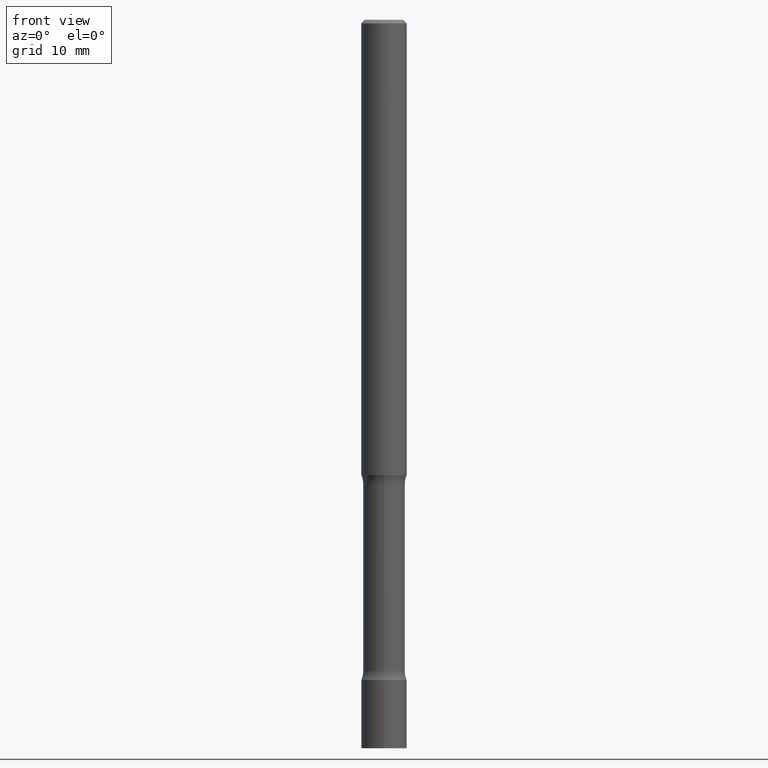
[diagram: clean part render]
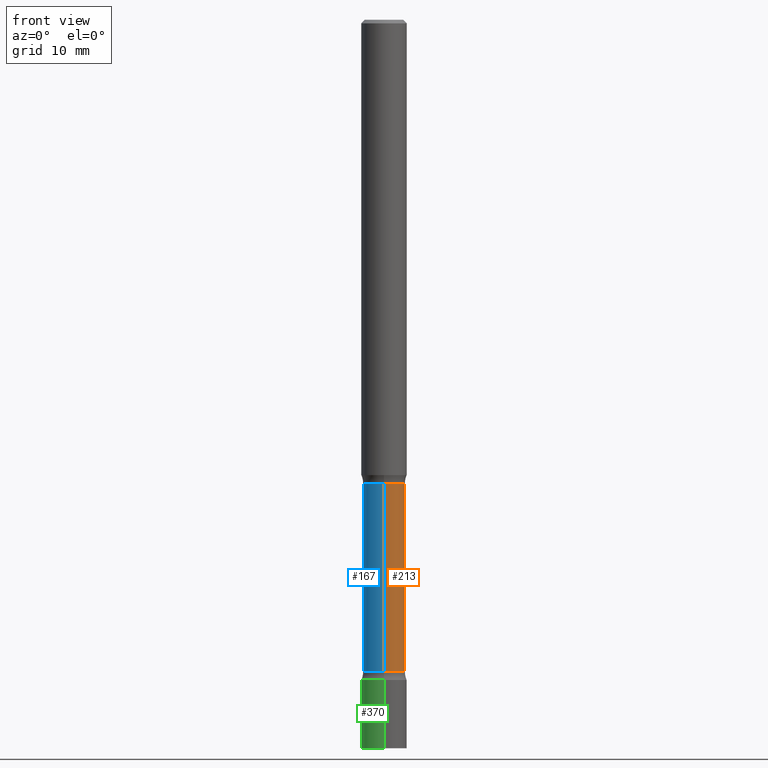
[diagram: same view with three faces highlighted in distinct colors, each labeled with its STEP entity id]
A machine part, front view with three faces highlighted in distinct colors.
Their STEP definitions:

[orange] entity #213 — the highlighted cylindrical surface (edge-blend (fillet) strip) has radius 2.921 mm, axis along (0, -0, -1).
#46 = EDGE_CURVE ( 'NONE', #505, #436, #324, .T. ) ;
#54 = CIRCLE ( 'NONE', #204, 0.1150000000000002548 ) ;
#62 = AXIS2_PLACEMENT_3D ( 'NONE', #355, #192, #396 ) ;
#76 = ORIENTED_EDGE ( 'NONE', *, *, #46, .F. ) ;
#78 = VERTEX_POINT ( 'NONE', #99 ) ;
#83 = ORIENTED_EDGE ( 'NONE', *, *, #107, .T. ) ;
#99 = CARTESIAN_POINT ( 'NONE',  ( -8.232597597325263900E-16, -0.1150000000000094974, -2.548989794855662794 ) ) ;
#107 = EDGE_CURVE ( 'NONE', #505, #78, #54, .T. ) ;
#134 = CARTESIAN_POINT ( 'NONE',  ( 5.997167695186142229E-29, -9.238155855736485446E-15, -2.548989794855663238 ) ) ;
#165 = DIRECTION ( 'NONE',  ( 2.665478544019061188E-29, -3.176414872088346138E-15, -1.000000000000000000 ) ) ;
#176 = EDGE_CURVE ( 'NONE', #436, #406, #263, .T. ) ;
#192 = DIRECTION ( 'NONE',  ( 2.665478544019061188E-29, -3.176414872088346532E-15, -1.000000000000000000 ) ) ;
#203 = CARTESIAN_POINT ( 'NONE',  ( -7.889572697436285910E-16, -0.1150000000000140216, -3.999999999999999556 ) ) ;
#204 = AXIS2_PLACEMENT_3D ( 'NONE', #134, #446, #251 ) ;
#213 = ADVANCED_FACE ( 'NONE', ( #274 ), #232, .T. ) ;
#214 = VECTOR ( 'NONE', #165, 39.37007874015748143 ) ;
#219 = ORIENTED_EDGE ( 'NONE', *, *, #312, .T. ) ;
#232 = CYLINDRICAL_SURFACE ( 'NONE', #62, 0.1150000000000001715 ) ;
#250 = CARTESIAN_POINT ( 'NONE',  ( -8.232597597324959202E-16, -0.1150000000000126060, -3.576010205144335874 ) ) ;
#251 = DIRECTION ( 'NONE',  ( 6.982962677686265133E-15, 1.000000000000000000, -4.751039988981317081E-15 ) ) ;
#254 = CARTESIAN_POINT ( 'NONE',  ( 8.030407079339822620E-16, 0.1149999999999910261, -2.548989794855663682 ) ) ;
#263 = CIRCLE ( 'NONE', #410, 0.1150000000000001021 ) ;
#274 = FACE_OUTER_BOUND ( 'NONE', #397, .T. ) ;
#277 = DIRECTION ( 'NONE',  ( 2.665478544019061188E-29, -3.176414872088346138E-15, -1.000000000000000000 ) ) ;
#295 = DIRECTION ( 'NONE',  ( 6.982962677686265922E-15, 1.000000000000000000, -4.751039988981323392E-15 ) ) ;
#298 = CARTESIAN_POINT ( 'NONE',  ( 8.030407079340086889E-16, 0.1149999999999876121, -3.576010205144337206 ) ) ;
#312 = EDGE_CURVE ( 'NONE', #78, #406, #325, .T. ) ;
#322 = DIRECTION ( 'NONE',  ( 2.665478544019061188E-29, -3.176414872088346532E-15, -1.000000000000000000 ) ) ;
#324 = LINE ( 'NONE', #331, #214 ) ;
#325 = LINE ( 'NONE', #203, #416 ) ;
#331 = CARTESIAN_POINT ( 'NONE',  ( 8.030407079340205218E-16, 0.1149999999999863215, -4.000000000000000888 ) ) ;
#355 = CARTESIAN_POINT ( 'NONE',  ( 9.864804264151068149E-29, -1.384716625090891886E-14, -4.000000000000000000 ) ) ;
#357 = ORIENTED_EDGE ( 'NONE', *, *, #176, .F. ) ;
#366 = CARTESIAN_POINT ( 'NONE',  ( 8.734668563080253921E-29, -1.250039876091570143E-14, -3.576010205144336318 ) ) ;
#396 = DIRECTION ( 'NONE',  ( 6.982962677686265922E-15, 1.000000000000000000, -4.751039988981320237E-15 ) ) ;
#397 = EDGE_LOOP ( 'NONE', ( #83, #219, #357, #76 ) ) ;
#406 = VERTEX_POINT ( 'NONE', #250 ) ;
#410 = AXIS2_PLACEMENT_3D ( 'NONE', #366, #322, #295 ) ;
#416 = VECTOR ( 'NONE', #277, 39.37007874015748143 ) ;
#436 = VERTEX_POINT ( 'NONE', #298 ) ;
#446 = DIRECTION ( 'NONE',  ( 2.665478544019061188E-29, -3.176414872088346532E-15, -1.000000000000000000 ) ) ;
#505 = VERTEX_POINT ( 'NONE', #254 ) ;

[blue] entity #167 — the highlighted cylindrical surface (edge-blend (fillet) strip) has radius 2.921 mm, axis along (0, -0, -1).
#20 = DIRECTION ( 'NONE',  ( 2.665478544019061188E-29, -3.176414872088346532E-15, -1.000000000000000000 ) ) ;
#27 = FACE_OUTER_BOUND ( 'NONE', #151, .T. ) ;
#46 = EDGE_CURVE ( 'NONE', #505, #436, #324, .T. ) ;
#55 = DIRECTION ( 'NONE',  ( 2.665478544019061188E-29, -3.176414872088346532E-15, -1.000000000000000000 ) ) ;
#78 = VERTEX_POINT ( 'NONE', #99 ) ;
#85 = ORIENTED_EDGE ( 'NONE', *, *, #312, .F. ) ;
#86 = ORIENTED_EDGE ( 'NONE', *, *, #481, .F. ) ;
#99 = CARTESIAN_POINT ( 'NONE',  ( -8.232597597325263900E-16, -0.1150000000000094974, -2.548989794855662794 ) ) ;
#128 = ORIENTED_EDGE ( 'NONE', *, *, #386, .T. ) ;
#140 = AXIS2_PLACEMENT_3D ( 'NONE', #404, #20, #490 ) ;
#151 = EDGE_LOOP ( 'NONE', ( #85, #128, #231, #86 ) ) ;
#165 = DIRECTION ( 'NONE',  ( 2.665478544019061188E-29, -3.176414872088346138E-15, -1.000000000000000000 ) ) ;
#167 = ADVANCED_FACE ( 'NONE', ( #27 ), #179, .T. ) ;
#179 = CYLINDRICAL_SURFACE ( 'NONE', #452, 0.1150000000000001715 ) ;
#203 = CARTESIAN_POINT ( 'NONE',  ( -7.889572697436285910E-16, -0.1150000000000140216, -3.999999999999999556 ) ) ;
#206 = DIRECTION ( 'NONE',  ( 6.982962677686265922E-15, 1.000000000000000000, -4.751039988981320237E-15 ) ) ;
#214 = VECTOR ( 'NONE', #165, 39.37007874015748143 ) ;
#231 = ORIENTED_EDGE ( 'NONE', *, *, #46, .T. ) ;
#250 = CARTESIAN_POINT ( 'NONE',  ( -8.232597597324959202E-16, -0.1150000000000126060, -3.576010205144335874 ) ) ;
#254 = CARTESIAN_POINT ( 'NONE',  ( 8.030407079339822620E-16, 0.1149999999999910261, -2.548989794855663682 ) ) ;
#257 = DIRECTION ( 'NONE',  ( 6.982962677686265922E-15, 1.000000000000000000, -4.751039988981323392E-15 ) ) ;
#277 = DIRECTION ( 'NONE',  ( 2.665478544019061188E-29, -3.176414872088346138E-15, -1.000000000000000000 ) ) ;
#297 = CIRCLE ( 'NONE', #140, 0.1150000000000002548 ) ;
#298 = CARTESIAN_POINT ( 'NONE',  ( 8.030407079340086889E-16, 0.1149999999999876121, -3.576010205144337206 ) ) ;
#312 = EDGE_CURVE ( 'NONE', #78, #406, #325, .T. ) ;
#324 = LINE ( 'NONE', #331, #214 ) ;
#325 = LINE ( 'NONE', #203, #416 ) ;
#331 = CARTESIAN_POINT ( 'NONE',  ( 8.030407079340205218E-16, 0.1149999999999863215, -4.000000000000000888 ) ) ;
#339 = AXIS2_PLACEMENT_3D ( 'NONE', #340, #504, #257 ) ;
#340 = CARTESIAN_POINT ( 'NONE',  ( 8.734668563080253921E-29, -1.250039876091570143E-14, -3.576010205144336318 ) ) ;
#386 = EDGE_CURVE ( 'NONE', #78, #505, #297, .T. ) ;
#404 = CARTESIAN_POINT ( 'NONE',  ( 5.997167695186142229E-29, -9.238155855736485446E-15, -2.548989794855663238 ) ) ;
#406 = VERTEX_POINT ( 'NONE', #250 ) ;
#408 = CARTESIAN_POINT ( 'NONE',  ( 9.864804264151068149E-29, -1.384716625090891886E-14, -4.000000000000000000 ) ) ;
#416 = VECTOR ( 'NONE', #277, 39.37007874015748143 ) ;
#421 = CIRCLE ( 'NONE', #339, 0.1150000000000001021 ) ;
#436 = VERTEX_POINT ( 'NONE', #298 ) ;
#452 = AXIS2_PLACEMENT_3D ( 'NONE', #408, #55, #206 ) ;
#481 = EDGE_CURVE ( 'NONE', #406, #436, #421, .T. ) ;
#490 = DIRECTION ( 'NONE',  ( 6.982962677686265133E-15, 1.000000000000000000, -4.751039988981317081E-15 ) ) ;
#504 = DIRECTION ( 'NONE',  ( 2.665478544019061188E-29, -3.176414872088346532E-15, -1.000000000000000000 ) ) ;
#505 = VERTEX_POINT ( 'NONE', #254 ) ;

[green] entity #370 — the highlighted cylindrical surface (edge-blend (fillet) strip) has radius 3.175 mm, axis along (-0, 0, 1).
#14 = AXIS2_PLACEMENT_3D ( 'NONE', #207, #166, #93 ) ;
#33 = CARTESIAN_POINT ( 'NONE',  ( 8.881784197002228539E-16, 0.1249999999999873157, -3.625000000000000444 ) ) ;
#39 = VERTEX_POINT ( 'NONE', #136 ) ;
#41 = ORIENTED_EDGE ( 'NONE', *, *, #101, .T. ) ;
#49 = CARTESIAN_POINT ( 'NONE',  ( -8.728703347106943948E-16, -0.1250000000000126288, -3.624999999999999112 ) ) ;
#60 = LINE ( 'NONE', #288, #467 ) ;
#91 = EDGE_CURVE ( 'NONE', #39, #278, #60, .T. ) ;
#93 = DIRECTION ( 'NONE',  ( -6.982962677686265922E-15, -1.000000000000000000, 3.491313289345044808E-15 ) ) ;
#96 = CIRCLE ( 'NONE', #162, 0.1250000000000000000 ) ;
#101 = EDGE_CURVE ( 'NONE', #478, #39, #96, .T. ) ;
#131 = FACE_OUTER_BOUND ( 'NONE', #477, .T. ) ;
#136 = CARTESIAN_POINT ( 'NONE',  ( -8.728703347106854215E-16, -0.1250000000000139611, -3.999999999999999556 ) ) ;
#162 = AXIS2_PLACEMENT_3D ( 'NONE', #376, #208, #210 ) ;
#166 = DIRECTION ( 'NONE',  ( -2.445586154522460485E-29, 3.491313289345045202E-15, 1.000000000000000000 ) ) ;
#174 = LINE ( 'NONE', #259, #468 ) ;
#196 = AXIS2_PLACEMENT_3D ( 'NONE', #330, #333, #462 ) ;
#207 = CARTESIAN_POINT ( 'NONE',  ( 0.000000000000000000, 0.000000000000000000, 0.000000000000000000 ) ) ;
#208 = DIRECTION ( 'NONE',  ( -2.445586154522460485E-29, 3.491313289345045202E-15, 1.000000000000000000 ) ) ;
#210 = DIRECTION ( 'NONE',  ( -6.982962677686265922E-15, -1.000000000000000000, 4.370956789862821150E-15 ) ) ;
#215 = DIRECTION ( 'NONE',  ( -2.445586154522460205E-29, 3.491313289345044808E-15, 1.000000000000000000 ) ) ;
#221 = CARTESIAN_POINT ( 'NONE',  ( 8.881784197002183179E-16, 0.1249999999999860251, -4.000000000000000888 ) ) ;
#241 = CYLINDRICAL_SURFACE ( 'NONE', #14, 0.1250000000000000000 ) ;
#259 = CARTESIAN_POINT ( 'NONE',  ( 8.881784197001251337E-16, 0.1250000000000000000, -4.364141611681306010E-16 ) ) ;
#269 = ORIENTED_EDGE ( 'NONE', *, *, #91, .T. ) ;
#273 = ORIENTED_EDGE ( 'NONE', *, *, #428, .F. ) ;
#278 = VERTEX_POINT ( 'NONE', #49 ) ;
#288 = CARTESIAN_POINT ( 'NONE',  ( -8.728703347107832402E-16, -0.1250000000000000000, 4.364141611681306010E-16 ) ) ;
#296 = DIRECTION ( 'NONE',  ( -2.445586154522460205E-29, 3.491313289345044808E-15, 1.000000000000000000 ) ) ;
#330 = CARTESIAN_POINT ( 'NONE',  ( 8.865249810143920344E-29, -1.265601067387578743E-14, -3.624999999999999556 ) ) ;
#333 = DIRECTION ( 'NONE',  ( -2.445586154522460485E-29, 3.491313289345045202E-15, 1.000000000000000000 ) ) ;
#370 = ADVANCED_FACE ( 'NONE', ( #131 ), #241, .T. ) ;
#373 = CIRCLE ( 'NONE', #196, 0.1249999999999999861 ) ;
#376 = CARTESIAN_POINT ( 'NONE',  ( 9.782344618089841940E-29, -1.396525315738017923E-14, -4.000000000000000000 ) ) ;
#428 = EDGE_CURVE ( 'NONE', #478, #434, #174, .T. ) ;
#434 = VERTEX_POINT ( 'NONE', #33 ) ;
#462 = DIRECTION ( 'NONE',  ( -6.982962677686265922E-15, -1.000000000000000000, 4.370956789862821938E-15 ) ) ;
#467 = VECTOR ( 'NONE', #215, 39.37007874015748143 ) ;
#468 = VECTOR ( 'NONE', #296, 39.37007874015748143 ) ;
#477 = EDGE_LOOP ( 'NONE', ( #273, #41, #269, #508 ) ) ;
#478 = VERTEX_POINT ( 'NONE', #221 ) ;
#488 = EDGE_CURVE ( 'NONE', #434, #278, #373, .T. ) ;
#508 = ORIENTED_EDGE ( 'NONE', *, *, #488, .F. ) ;